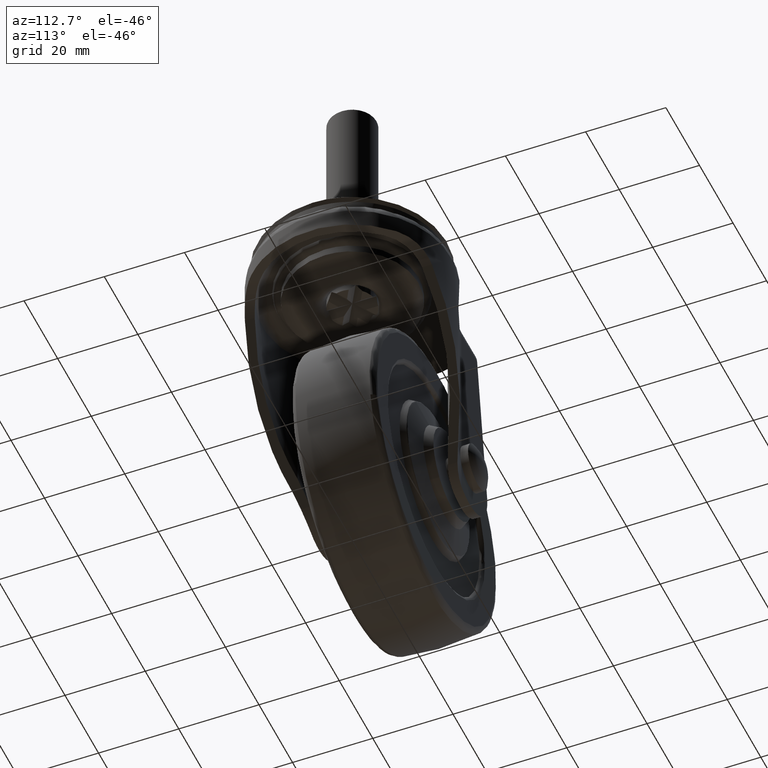
[diagram: clean part render]
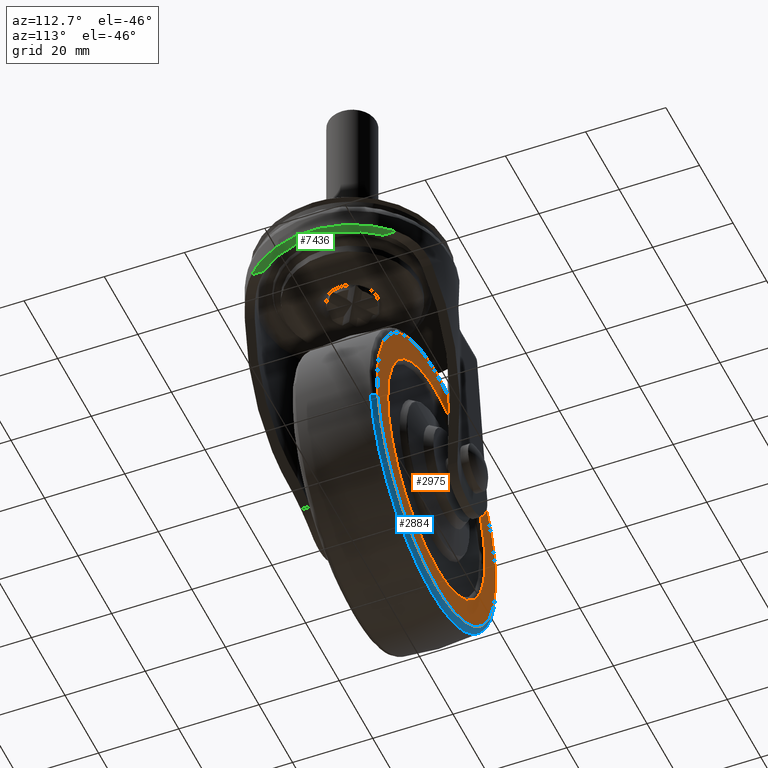
[diagram: same view with three faces highlighted in distinct colors, each labeled with its STEP entity id]
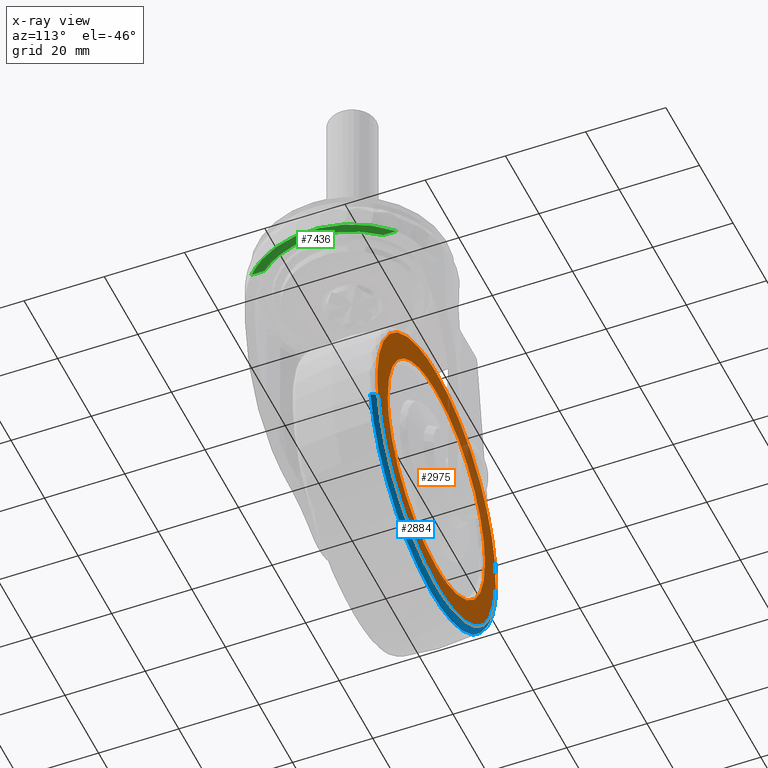
[diagram: x-ray of the same camera — body ghosted, the three highlighted faces saturated]
A machine part, auxiliary view with three faces highlighted in distinct colors.
The next image is the same camera in x-ray (body ghosted, the three faces saturated) — at least one of them is partly hidden behind the body in this view.
Their STEP definitions:

[orange] entity #2975 — the highlighted face is a freeform B-spline surface patch.
#2742=CARTESIAN_POINT('',(9.833513621472420,10.499999999999970,-55.241633087046743));
#2743=VERTEX_POINT('',#2742);
#2754=CARTESIAN_POINT('',(-25.0,10.500000000000000,-14.196417278717240));
#2755=VERTEX_POINT('',#2754);
#2756=CARTESIAN_POINT('',(9.833513621472420,10.499999999999970,-55.241633087046743));
#2757=CARTESIAN_POINT('',(10.157814401604780,10.499999999999970,-53.275279123376798));
#2758=CARTESIAN_POINT('',(10.390200561761590,10.499999999999970,-50.324354790365582));
#2759=CARTESIAN_POINT('',(10.189343725641150,10.499999999999980,-46.020807152058680));
#2760=CARTESIAN_POINT('',(9.624602316848836,10.499999999999970,-42.149212593272210));
#2761=CARTESIAN_POINT('',(8.345171582749103,10.499999999999989,-37.529121580926862));
#2762=CARTESIAN_POINT('',(6.504117009425287,10.499999999999950,-33.359894178948117));
#2763=CARTESIAN_POINT('',(4.160872115881816,10.499999999999940,-29.460925218352472));
#2764=CARTESIAN_POINT('',(1.918222982358623,10.500000000000380,-26.549123120400552));
#2765=CARTESIAN_POINT('',(-0.898696218039545,10.499999999999551,-23.613012114731809));
#2766=CARTESIAN_POINT('',(-4.133742534500807,10.500000000000140,-20.881910109461700));
#2767=CARTESIAN_POINT('',(-7.988775291349205,10.500000000000369,-18.452929372024791));
#2768=CARTESIAN_POINT('',(-12.335645794620779,10.499999999999810,-16.440735860867431));
#2769=CARTESIAN_POINT('',(-16.682009963358858,10.499999999999950,-15.073146612302249));
#2770=CARTESIAN_POINT('',(-21.093914278981948,10.500000000000220,-14.334214013443971));
#2771=CARTESIAN_POINT('',(-23.804263599596698,10.499999999999741,-14.196406389922741));
#2772=CARTESIAN_POINT('',(-25.0,10.500000000000000,-14.196417278717240));
#2773=B_SPLINE_CURVE_WITH_KNOTS('',3,(#2756,#2757,#2758,#2759,#2760,#2761,#2762,#2763,#2764,#2765,#2766,#2767,#2768,#2769,#2770,#2771,#2772),.UNSPECIFIED.,.F.,.U.,(4,1,1,1,1,1,1,1,1,1,1,1,1,1,4),(0.000000054299278,5.978718286946425,8.848503056171055,12.914026964034241,17.697010386645459,23.197460145397880,26.545548861988120,31.328435226022378,34.198261670844850,38.742100696448361,44.003366954811327,47.829761974693440,53.091028233053741,57.634867258656413,61.222085938480561),.UNSPECIFIED.);
#2774=EDGE_CURVE('',#2743,#2755,#2773,.T.);
#2776=CARTESIAN_POINT('',(-59.833513621472427,10.499999999999970,-43.758295470387537));
#2777=VERTEX_POINT('',#2776);
#2778=CARTESIAN_POINT('',(-25.0,10.500000000000000,-14.196417278717240));
#2779=CARTESIAN_POINT('',(-26.811525737116281,10.500000000000020,-14.196307693423140));
#2780=CARTESIAN_POINT('',(-29.528759456105380,10.500000000000000,-14.406043977141120));
#2781=CARTESIAN_POINT('',(-33.468869110184862,10.499999999999980,-15.173728206301190));
#2782=CARTESIAN_POINT('',(-36.763621821157763,10.500000000000060,-16.142170286002251));
#2783=CARTESIAN_POINT('',(-40.833087896828403,10.499999999999920,-17.829571516339570));
#2784=CARTESIAN_POINT('',(-44.876674878356532,10.500000000000140,-20.171862827101911));
#2785=CARTESIAN_POINT('',(-48.228872476680387,10.499999999999771,-22.831804075404481));
#2786=CARTESIAN_POINT('',(-50.918109169392189,10.500000000000449,-25.452234842852491));
#2787=CARTESIAN_POINT('',(-53.017647802759583,10.499999999999190,-27.920263840895089));
#2788=CARTESIAN_POINT('',(-55.221836183700752,10.500000000000931,-31.120174598744899));
#2789=CARTESIAN_POINT('',(-57.011174927197978,10.499999999999710,-34.427057230949138));
#2790=CARTESIAN_POINT('',(-58.743620365080211,10.500000000000041,-38.757965204289889));
#2791=CARTESIAN_POINT('',(-59.518008118093753,10.499999999999959,-41.843193416825748));
#2792=CARTESIAN_POINT('',(-59.833513621472427,10.499999999999970,-43.758295470387537));
#2793=B_SPLINE_CURVE_WITH_KNOTS('',3,(#2778,#2779,#2780,#2781,#2782,#2783,#2784,#2785,#2786,#2787,#2788,#2789,#2790,#2791,#2792),.UNSPECIFIED.,.F.,.U.,(4,1,1,1,1,1,1,1,1,1,1,1,4),(0.000000054359845,5.434558695177991,8.151831122498535,12.033681000206929,15.721428173455960,21.350114838133390,26.008255451915151,28.531459809579111,32.607376821628719,35.712857520269253,40.176979447410517,43.864735719945642,49.687457612597072),.UNSPECIFIED.);
#2794=EDGE_CURVE('',#2755,#2777,#2793,.T.);
#2842=CARTESIAN_POINT('',(-25.0,10.499999999999950,-84.803511278717025));
#2843=VERTEX_POINT('',#2842);
#2844=CARTESIAN_POINT('',(-59.833513621472427,10.499999999999970,-43.758295470387537));
#2845=CARTESIAN_POINT('',(-60.235802018750100,10.499999999999989,-46.196566339131330));
#2846=CARTESIAN_POINT('',(-60.459637733645550,10.499999999999940,-50.037498177999900));
#2847=CARTESIAN_POINT('',(-59.961078110980729,10.499999999999989,-54.802409840869892));
#2848=CARTESIAN_POINT('',(-59.175138360753031,10.499999999999950,-58.631912387982950));
#2849=CARTESIAN_POINT('',(-58.026629729061497,10.499999999999931,-62.207233061786752));
#2850=CARTESIAN_POINT('',(-56.232271336810662,10.500000000000011,-66.126226927732887));
#2851=CARTESIAN_POINT('',(-54.121952168733777,10.500000000000030,-69.610969678239556));
#2852=CARTESIAN_POINT('',(-51.752504707499057,10.499999999999730,-72.623504793739784));
#2853=CARTESIAN_POINT('',(-49.101294638982260,10.500000000000099,-75.386905882263449));
#2854=CARTESIAN_POINT('',(-45.866271516101087,10.499999999999870,-78.118039923789809));
#2855=CARTESIAN_POINT('',(-42.281745269770980,10.499999999999980,-80.376523071773505));
#2856=CARTESIAN_POINT('',(-38.396958386578881,10.499999999999980,-82.239146164141772));
#2857=CARTESIAN_POINT('',(-34.402893071103797,10.499999999999771,-83.646221086265470));
#2858=CARTESIAN_POINT('',(-29.703231146532382,10.500000000000460,-84.598044435999142));
#2859=CARTESIAN_POINT('',(-26.514593768562250,10.499999999999460,-84.803548595972103));
#2860=CARTESIAN_POINT('',(-25.0,10.499999999999950,-84.803511278717025));
#2861=B_SPLINE_CURVE_WITH_KNOTS('',3,(#2844,#2845,#2846,#2847,#2848,#2849,#2850,#2851,#2852,#2853,#2854,#2855,#2856,#2857,#2858,#2859,#2860),.UNSPECIFIED.,.F.,.U.,(4,1,1,1,1,1,1,1,1,1,1,1,1,1,4),(0.000000054534091,7.413610131659731,11.479130754584951,14.348923960323280,19.131903583062620,22.719161560348969,27.262985477111879,31.328435226137550,34.198261670948050,38.742100696532731,44.003366954875418,46.873163235148837,51.656137624927297,56.678297994785218,61.222085938480042),.UNSPECIFIED.);
#2862=EDGE_CURVE('',#2777,#2843,#2861,.T.);
#2864=CARTESIAN_POINT('',(-25.0,10.499999999999950,-84.803511278717025));
#2865=CARTESIAN_POINT('',(-23.382572545584399,10.499999999999950,-84.803561993575599));
#2866=CARTESIAN_POINT('',(-19.824234882366650,10.499999999999959,-84.558633719745742));
#2867=CARTESIAN_POINT('',(-14.629182796835570,10.499999999999901,-83.397488566956753));
#2868=CARTESIAN_POINT('',(-10.044206367339600,10.500000000000041,-81.584102334735746));
#2869=CARTESIAN_POINT('',(-6.354831117302061,10.499999999999879,-79.553913890350415));
#2870=CARTESIAN_POINT('',(-3.482402300722288,10.499999999999909,-77.556942025671447));
#2871=CARTESIAN_POINT('',(-0.766751542203159,10.500000000000030,-75.252284899412103));
#2872=CARTESIAN_POINT('',(1.934371785403266,10.499999999999890,-72.456216424966925));
#2873=CARTESIAN_POINT('',(4.788231729988124,10.500000000000080,-68.680152072440265));
#2874=CARTESIAN_POINT('',(7.221875988886065,10.499999999999931,-64.241037394439957));
#2875=CARTESIAN_POINT('',(8.925819062185175,10.499999999999970,-59.616344405447443));
#2876=CARTESIAN_POINT('',(9.602059552423883,10.499999999999980,-56.646020484497257));
#2877=CARTESIAN_POINT('',(9.833513621472420,10.499999999999970,-55.241633087046743));
#2878=B_SPLINE_CURVE_WITH_KNOTS('',3,(#2864,#2865,#2866,#2867,#2868,#2869,#2870,#2871,#2872,#2873,#2874,#2875,#2876,#2877),.UNSPECIFIED.,.F.,.U.,(4,1,1,1,1,1,1,1,1,1,1,4),(0.000000054366609,4.852288119674697,10.675033389736210,15.915528339643201,19.603284043805051,23.291039103728270,26.396418262616319,30.278275683738869,34.936484091081198,40.565153972051981,45.417456130556559,49.687457612597051),.UNSPECIFIED.);
#2879=EDGE_CURVE('',#2843,#2743,#2878,.T.);
#2885=CARTESIAN_POINT('',(-63.828396298376241,10.500000000000000,-10.669593070267499));
#2886=CARTESIAN_POINT('',(-63.828396298376241,10.500000000000000,-88.330337380996596));
#2887=CARTESIAN_POINT('',(13.828420916920070,10.500000000000000,-10.669593070267499));
#2888=CARTESIAN_POINT('',(13.828420916920070,10.500000000000000,-88.330337380996596));
#2889=B_SPLINE_SURFACE_WITH_KNOTS('',1,1,((#2885,#2887),(#2886,#2888)),.UNSPECIFIED.,.F.,.F.,.U.,(2,2),(2,2),(0.0,77.660744310729100),(0.0,77.656817215296314),.UNSPECIFIED.);
#2890=ORIENTED_EDGE('',*,*,#2862,.F.);
#2891=ORIENTED_EDGE('',*,*,#2794,.F.);
#2892=ORIENTED_EDGE('',*,*,#2774,.F.);
#2893=ORIENTED_EDGE('',*,*,#2879,.F.);
#2894=EDGE_LOOP('',(#2890,#2891,#2892,#2893));
#2895=FACE_OUTER_BOUND('',#2894,.T.);
#2896=CARTESIAN_POINT('',(-25.0,10.500000000000000,-78.499964995979738));
#2897=VERTEX_POINT('',#2896);
#2898=CARTESIAN_POINT('',(3.997710994119841,10.500000000000000,-49.864379444530812));
#2899=VERTEX_POINT('',#2898);
#2900=CARTESIAN_POINT('',(-25.0,10.500000000000000,-78.499964995979738));
#2901=CARTESIAN_POINT('',(-23.411338580855400,10.499999999999980,-78.500083124986645));
#2902=CARTESIAN_POINT('',(-20.881292054212331,10.500000000000050,-78.291518100176376));
#2903=CARTESIAN_POINT('',(-17.081170578475319,10.499999999999970,-77.469469826126371));
#2904=CARTESIAN_POINT('',(-13.735078845073900,10.500000000000000,-76.316895870728885));
#2905=CARTESIAN_POINT('',(-10.152654286614551,10.500000000000011,-74.516747460017399));
#2906=CARTESIAN_POINT('',(-7.090550769869774,10.499999999999901,-72.410135218607408));
#2907=CARTESIAN_POINT('',(-4.061767125399243,10.500000000000250,-69.697386097363406));
#2908=CARTESIAN_POINT('',(-1.579587466920788,10.499999999999710,-66.770811611771521));
#2909=CARTESIAN_POINT('',(0.739016929465512,10.500000000000441,-63.075785327525402));
#2910=CARTESIAN_POINT('',(2.390172528963054,10.499999999999909,-59.351767153880502));
#2911=CARTESIAN_POINT('',(3.640389031421735,10.499999999999931,-54.802709058545851));
#2912=CARTESIAN_POINT('',(3.975007471726284,10.500000000000050,-51.688265321703341));
#2913=CARTESIAN_POINT('',(3.997710994119841,10.500000000000000,-49.864379444530812));
#2914=B_SPLINE_CURVE_WITH_KNOTS('',3,(#2900,#2901,#2902,#2903,#2904,#2905,#2906,#2907,#2908,#2909,#2910,#2911,#2912,#2913),.UNSPECIFIED.,.F.,.U.,(4,1,1,1,1,1,1,1,1,1,1,4),(0.000000070663191,4.765967557542560,7.590280277127576,11.650223062477270,15.357131178923940,19.593562206388249,22.770844453328809,27.536856737198029,31.067251990583170,35.833268256996853,39.716694765485357,45.188739601758499),.UNSPECIFIED.);
#2915=EDGE_CURVE('',#2897,#2899,#2914,.T.);
#2916=ORIENTED_EDGE('',*,*,#2915,.T.);
#2917=CARTESIAN_POINT('',(-25.0,10.500000000000000,-20.499963561454539));
#2918=VERTEX_POINT('',#2917);
#2919=CARTESIAN_POINT('',(3.997710994119841,10.500000000000000,-49.864379444530812));
#2920=CARTESIAN_POINT('',(4.011247760238191,10.500000000000011,-48.788287058261922));
#2921=CARTESIAN_POINT('',(3.905489593725533,10.500000000000000,-46.335441692562902));
#2922=CARTESIAN_POINT('',(3.297442788783926,10.500000000000000,-42.790834751613907));
#2923=CARTESIAN_POINT('',(2.094762008387382,10.499999999999980,-38.899792292503712));
#2924=CARTESIAN_POINT('',(0.234046318928382,10.500000000000050,-34.936125012155998));
#2925=CARTESIAN_POINT('',(-2.397822198766622,10.500000000000000,-31.137852140607659));
#2926=CARTESIAN_POINT('',(-5.258087742177062,10.499999999999980,-28.150534903904159));
#2927=CARTESIAN_POINT('',(-8.004469976419101,10.500000000000041,-25.928072430069669));
#2928=CARTESIAN_POINT('',(-10.678104589960411,10.499999999999920,-24.218056874211481));
#2929=CARTESIAN_POINT('',(-13.627579255160811,10.500000000000179,-22.753869415186010));
#2930=CARTESIAN_POINT('',(-17.233679400278039,10.499999999999890,-21.452229824155779));
#2931=CARTESIAN_POINT('',(-21.113758186443668,10.500000000000041,-20.661690933712048));
#2932=CARTESIAN_POINT('',(-23.864033407590320,10.500000000000000,-20.499944593494490));
#2933=CARTESIAN_POINT('',(-25.0,10.500000000000000,-20.499963561454539));
#2934=B_SPLINE_CURVE_WITH_KNOTS('',3,(#2919,#2920,#2921,#2922,#2923,#2924,#2925,#2926,#2927,#2928,#2929,#2930,#2931,#2932,#2933),.UNSPECIFIED.,.F.,.U.,(4,1,1,1,1,1,1,1,1,1,1,1,4),(0.000000073540441,3.228539457566981,7.353969193787037,10.761932451217261,15.425461501953000,20.447686254038370,24.573041107743130,27.801666853115702,31.030230874414642,34.079462538876477,37.666782893494997,42.509685166278629,45.917592545971999),.UNSPECIFIED.);
#2935=EDGE_CURVE('',#2899,#2918,#2934,.T.);
#2936=ORIENTED_EDGE('',*,*,#2935,.T.);
#2937=CARTESIAN_POINT('',(-53.997710994119842,10.500000000000000,-49.135549112903462));
#2938=VERTEX_POINT('',#2937);
#2939=CARTESIAN_POINT('',(-25.0,10.500000000000000,-20.499963561454539));
#2940=CARTESIAN_POINT('',(-26.117948299729690,10.500000000000000,-20.499941542884901));
#2941=CARTESIAN_POINT('',(-28.648033775174820,10.500000000000011,-20.646427138326828));
#2942=CARTESIAN_POINT('',(-32.878396969883163,10.500000000000000,-21.454064835768200));
#2943=CARTESIAN_POINT('',(-36.980991748281902,10.500000000000011,-22.965861017819151));
#2944=CARTESIAN_POINT('',(-41.004609766143183,10.499999999999980,-25.191253758663830));
#2945=CARTESIAN_POINT('',(-44.198222040743730,10.500000000000050,-27.625571175593450));
#2946=CARTESIAN_POINT('',(-46.792510188547482,10.499999999999980,-30.282936595065610));
#2947=CARTESIAN_POINT('',(-48.905668822719257,10.500000000000030,-32.967200779233842));
#2948=CARTESIAN_POINT('',(-50.821086698502413,10.500000000000030,-36.082449463662797));
#2949=CARTESIAN_POINT('',(-52.390174852539253,10.499999999999920,-39.710464965102886));
#2950=CARTESIAN_POINT('',(-53.619708375778053,10.500000000000130,-44.079816143809438));
#2951=CARTESIAN_POINT('',(-53.973584344659372,10.499999999999760,-47.193976587724727));
#2952=CARTESIAN_POINT('',(-53.997710994119842,10.500000000000000,-49.135549112903462));
#2953=B_SPLINE_CURVE_WITH_KNOTS('',3,(#2939,#2940,#2941,#2942,#2943,#2944,#2945,#2946,#2947,#2948,#2949,#2950,#2951,#2952),.UNSPECIFIED.,.F.,.U.,(4,1,1,1,1,1,1,1,1,1,1,4),(0.000000070700715,3.353851913367073,7.590280277157106,12.885855779481229,16.416246884810789,21.358749695500070,24.889094533455228,27.536856737213959,31.596807489431551,35.833268257006360,39.363639299812156,45.188739601758272),.UNSPECIFIED.);
#2954=EDGE_CURVE('',#2918,#2938,#2953,.T.);
#2955=ORIENTED_EDGE('',*,*,#2954,.T.);
#2956=CARTESIAN_POINT('',(-53.997710994119842,10.500000000000000,-49.135549112903462));
#2957=CARTESIAN_POINT('',(-54.018897594099862,10.500000000000030,-50.809491238542442));
#2958=CARTESIAN_POINT('',(-53.814474799436489,10.499999999999940,-53.562484825470641));
#2959=CARTESIAN_POINT('',(-52.876433795675581,10.500000000000030,-57.831988501734500));
#2960=CARTESIAN_POINT('',(-51.289808149571193,10.499999999999980,-62.106852847210291));
#2961=CARTESIAN_POINT('',(-49.054976160368042,10.499999999999989,-65.879215469042080));
#2962=CARTESIAN_POINT('',(-46.392519258349552,10.499999999999959,-69.191323550817302));
#2963=CARTESIAN_POINT('',(-43.766510067434879,10.500000000000060,-71.737876904599062));
#2964=CARTESIAN_POINT('',(-40.129722814808929,10.500000000000000,-74.377260085719939));
#2965=CARTESIAN_POINT('',(-36.389343726969457,10.499999999999909,-76.292125755298272));
#2966=CARTESIAN_POINT('',(-32.752062796809263,10.500000000000060,-77.503842547095630));
#2967=CARTESIAN_POINT('',(-29.125356346148401,10.499999999999959,-78.289722625437761));
#2968=CARTESIAN_POINT('',(-26.614297953642090,10.500000000000030,-78.500092298289957));
#2969=CARTESIAN_POINT('',(-25.0,10.500000000000000,-78.499964995979738));
#2970=B_SPLINE_CURVE_WITH_KNOTS('',3,(#2956,#2957,#2958,#2959,#2960,#2961,#2962,#2963,#2964,#2965,#2966,#2967,#2968,#2969),.UNSPECIFIED.,.F.,.U.,(4,1,1,1,1,1,1,1,1,1,1,4),(0.000000073492032,5.022205826207127,8.250812251170444,13.093697011243069,18.654025649160658,21.344552130953080,25.828609101141360,29.595316502219610,34.796926311753772,38.384256468944102,41.074721997514331,45.917592545972070),.UNSPECIFIED.);
#2971=EDGE_CURVE('',#2938,#2897,#2970,.T.);
#2972=ORIENTED_EDGE('',*,*,#2971,.T.);
#2973=EDGE_LOOP('',(#2916,#2936,#2955,#2972));
#2974=FACE_BOUND('',#2973,.T.);
#2975=ADVANCED_FACE('',(#2895,#2974),#2889,.F.);

[blue] entity #2884 — the highlighted face is a freeform B-spline surface patch.
#2561=CARTESIAN_POINT('',(-25.0,9.230742634601860,-86.285657244330764));
#2562=VERTEX_POINT('',#2561);
#2571=CARTESIAN_POINT('',(11.295924161015449,9.230742941106907,-55.482684766788630));
#2572=VERTEX_POINT('',#2571);
#2573=CARTESIAN_POINT('',(-25.0,9.230742634601860,-86.285657244330764));
#2574=CARTESIAN_POINT('',(-23.045018862977990,9.230742644199218,-86.285743229991184));
#2575=CARTESIAN_POINT('',(-18.932811029073289,9.230742665756269,-85.957193874480993));
#2576=CARTESIAN_POINT('',(-13.486862637971310,9.230742698222239,-84.581698495184114));
#2577=CARTESIAN_POINT('',(-8.937960280176249,9.230742728474194,-82.680517778760347));
#2578=CARTESIAN_POINT('',(-5.518121884724243,9.230742753204885,-80.774105566195800));
#2579=CARTESIAN_POINT('',(-2.082550186019867,9.230742780020721,-78.385737340407090));
#2580=CARTESIAN_POINT('',(1.203588067516712,9.230742808297974,-75.470232408259633));
#2581=CARTESIAN_POINT('',(4.075442199912475,9.230742836228862,-72.150076162715095));
#2582=CARTESIAN_POINT('',(6.612277267029130,9.230742863932585,-68.488931125425268));
#2583=CARTESIAN_POINT('',(8.629195298726653,9.230742889779291,-64.661485448475261));
#2584=CARTESIAN_POINT('',(10.322379109586180,9.230742917073599,-60.104786771170239));
#2585=CARTESIAN_POINT('',(11.021901305186470,9.230742932834399,-57.145583767534518));
#2586=CARTESIAN_POINT('',(11.295924161015449,9.230742941106907,-55.482684766788630));
#2587=B_SPLINE_CURVE_WITH_KNOTS('',3,(#2573,#2574,#2575,#2576,#2577,#2578,#2579,#2580,#2581,#2582,#2583,#2584,#2585,#2586),.UNSPECIFIED.,.F.,.U.,(4,1,1,1,1,1,1,1,1,1,1,4),(0.000000052567785,5.864952464914097,12.336648072001630,16.785948737055580,20.628522188213619,24.066619136716142,29.324819506689789,33.774090722483990,37.212189038250393,42.672688504653692,46.717507489184847,51.773480724665177),.UNSPECIFIED.);
#2588=EDGE_CURVE('',#2562,#2572,#2587,.T.);
#2672=CARTESIAN_POINT('',(-61.295924161016814,9.230742941098079,-43.517243790645423));
#2673=VERTEX_POINT('',#2672);
#2691=CARTESIAN_POINT('',(-61.295924161016814,9.230742941098079,-43.517243790645423));
#2692=CARTESIAN_POINT('',(-61.728731923528883,9.230742931703695,-46.139821621512262));
#2693=CARTESIAN_POINT('',(-61.971144930983037,9.230742914142185,-50.561344602555600));
#2694=CARTESIAN_POINT('',(-61.174749822637153,9.230742884822609,-56.923760373845312));
#2695=CARTESIAN_POINT('',(-59.761943200134532,9.230742859123657,-61.893798321857737));
#2696=CARTESIAN_POINT('',(-57.812563336342052,9.230742833841982,-66.308182457756189));
#2697=CARTESIAN_POINT('',(-55.369078559492799,9.230742807867861,-70.469451008724334));
#2698=CARTESIAN_POINT('',(-52.471578928183618,9.230742782382750,-74.127878573782112));
#2699=CARTESIAN_POINT('',(-48.885029398395147,9.230742755247588,-77.597609138266222));
#2700=CARTESIAN_POINT('',(-45.496237153885289,9.230742732601936,-80.157390676968163));
#2701=CARTESIAN_POINT('',(-41.825741144279611,9.230742710768094,-82.283275451552768));
#2702=CARTESIAN_POINT('',(-37.731122442345942,9.230742688603080,-84.128559554135407));
#2703=CARTESIAN_POINT('',(-32.143272164569389,9.230742661866014,-85.803990483584869));
#2704=CARTESIAN_POINT('',(-27.574958149913261,9.230742643704931,-86.286047719887137));
#2705=CARTESIAN_POINT('',(-25.0,9.230742634601860,-86.285657244330764));
#2706=B_SPLINE_CURVE_WITH_KNOTS('',3,(#2691,#2692,#2693,#2694,#2695,#2696,#2697,#2698,#2699,#2700,#2701,#2702,#2703,#2704,#2705),.UNSPECIFIED.,.F.,.U.,(4,1,1,1,1,1,1,1,1,1,1,1,4),(0.000000042187494,7.974015631830881,13.207004272368330,19.187557693327260,23.423784870024559,27.659974118803479,33.640474566527551,37.378310618308902,42.611293544623130,46.349139503072543,50.086980723865317,56.067540041560463,63.792365178012538),.UNSPECIFIED.);
#2707=EDGE_CURVE('',#2673,#2562,#2706,.T.);
#2742=CARTESIAN_POINT('',(9.833513621472420,10.499999999999970,-55.241633087046743));
#2743=VERTEX_POINT('',#2742);
#2744=CARTESIAN_POINT('',(9.833513621472420,10.499999999999970,-55.241633087046743));
#2745=CARTESIAN_POINT('',(10.051927399562150,10.500297930727740,-55.277634611030301));
#2746=CARTESIAN_POINT('',(10.411922774474659,10.417704068992411,-55.336973276545727));
#2747=CARTESIAN_POINT('',(10.816146906537410,10.145330181210699,-55.403602245226672));
#2748=CARTESIAN_POINT('',(11.134868125947420,9.776205636507410,-55.456137619676191));
#2749=CARTESIAN_POINT('',(11.262679686853170,9.449546629561841,-55.477205022150848));
#2750=CARTESIAN_POINT('',(11.295924161015449,9.230742941106907,-55.482684766788630));
#2751=B_SPLINE_CURVE_WITH_KNOTS('',3,(#2744,#2745,#2746,#2747,#2748,#2749,#2750),.UNSPECIFIED.,.F.,.U.,(4,1,1,1,4),(0.000000222645224,0.663940218376787,1.095442564531482,1.460638678999480,2.124573137029232),.UNSPECIFIED.);
#2752=EDGE_CURVE('',#2743,#2572,#2751,.T.);
#2776=CARTESIAN_POINT('',(-59.833513621472427,10.499999999999970,-43.758295470387537));
#2777=VERTEX_POINT('',#2776);
#2796=CARTESIAN_POINT('',(-59.833513621472427,10.499999999999970,-43.758295470387537));
#2797=CARTESIAN_POINT('',(-59.986363875909433,10.500061691596111,-43.733100896358927));
#2798=CARTESIAN_POINT('',(-60.324844685132568,10.446464094225780,-43.677308514226617));
#2799=CARTESIAN_POINT('',(-60.754390738449331,10.209866683894370,-43.606505689098732));
#2800=CARTESIAN_POINT('',(-61.126645709351202,9.797267372437228,-43.545146253023653));
#2801=CARTESIAN_POINT('',(-61.262675282646263,9.449539806731108,-43.522724261237357));
#2802=CARTESIAN_POINT('',(-61.295924161016814,9.230742941098079,-43.517243790645423));
#2803=B_SPLINE_CURVE_WITH_KNOTS('',3,(#2796,#2797,#2798,#2799,#2800,#2801,#2802),.UNSPECIFIED.,.F.,.U.,(4,1,1,1,4),(0.000000222649883,0.464751693536965,1.029128505767580,1.460638679006834,2.124573137038131),.UNSPECIFIED.);
#2804=EDGE_CURVE('',#2777,#2673,#2803,.T.);
#2810=CARTESIAN_POINT('',(-59.578565549947356,10.496915438999645,-42.802753313677115));
#2811=CARTESIAN_POINT('',(-59.658139997206824,10.496915438999645,-43.285514978484350));
#2812=CARTESIAN_POINT('',(-65.464678447813171,10.496915438999645,-78.512579265116571));
#2813=CARTESIAN_POINT('',(-30.726031730706854,10.496915438999645,-84.238610995823421));
#2814=CARTESIAN_POINT('',(4.012614986399423,10.496915438999645,-89.964642726530258));
#2815=CARTESIAN_POINT('',(9.819153436979340,10.496915438999645,-54.737578440058201));
#2816=CARTESIAN_POINT('',(9.898727884213001,10.496915438999645,-54.254816775407434));
#2817=CARTESIAN_POINT('',(-61.010910667017498,10.590587766573744,-42.525335286896713));
#2818=CARTESIAN_POINT('',(-61.093781320153688,10.590587766573742,-43.028094349001861));
#2819=CARTESIAN_POINT('',(-67.140843542192698,10.590587766573744,-79.714366463292208));
#2820=CARTESIAN_POINT('',(-30.963220678808810,10.590587766573744,-85.677587142101032));
#2821=CARTESIAN_POINT('',(5.214402184575086,10.590587766573744,-91.640807820909842));
#2822=CARTESIAN_POINT('',(11.261464406586601,10.590587766573742,-54.954535706786281));
#2823=CARTESIAN_POINT('',(11.344335059695952,10.590587766573742,-54.451776644844038));
#2824=CARTESIAN_POINT('',(-61.140213285265936,9.135131598699530,-42.500291827199369));
#2825=CARTESIAN_POINT('',(-61.223381498009168,9.135131598699532,-43.004856121715335));
#2826=CARTESIAN_POINT('',(-67.292156611045300,9.135131598699530,-79.822855841619869));
#2827=CARTESIAN_POINT('',(-30.984632524071287,9.135131598699532,-85.807488365691142));
#2828=CARTESIAN_POINT('',(5.322891562902719,9.135131598699530,-91.792120889762430));
#2829=CARTESIAN_POINT('',(11.391666675911280,9.135131598699532,-54.974121170025299));
#2830=CARTESIAN_POINT('',(11.474834888627557,9.135131598699532,-54.469556875672865));
#2838=(BOUNDED_SURFACE()B_SPLINE_SURFACE(2,2,((#2810,#2817,#2824),(#2811,#2818,#2825),(#2812,#2819,#2826),(#2813,#2820,#2827),(#2814,#2821,#2828),(#2815,#2822,#2829),(#2816,#2823,#2830)),.UNSPECIFIED.,.F.,.F.,.U.)B_SPLINE_SURFACE_WITH_KNOTS((3,1,2,1,3),(3,3),(0.0,1.219360140752769,62.187367159789147,123.155374178825500,124.374734319176100),(0.0,2.440142451861901),.UNSPECIFIED.)GEOMETRIC_REPRESENTATION_ITEM()RATIONAL_B_SPLINE_SURFACE(((0.928814889955225,0.664795061627155,0.927473185371679),(0.923437023917335,0.660945878304680,0.922103087843522),(0.649165856066966,0.464637528917186,0.648228113989416),(0.918059157879444,0.657096694982205,0.916732990315364),(0.649165856066966,0.464637528917186,0.648228113989416),(0.923437023915561,0.660945878303411,0.922103087841750),(0.928814889951678,0.664795061624616,0.927473185368137)))REPRESENTATION_ITEM('')SURFACE());
#2839=ORIENTED_EDGE('',*,*,#2588,.F.);
#2840=ORIENTED_EDGE('',*,*,#2707,.F.);
#2841=ORIENTED_EDGE('',*,*,#2804,.F.);
#2842=CARTESIAN_POINT('',(-25.0,10.499999999999950,-84.803511278717025));
#2843=VERTEX_POINT('',#2842);
#2844=CARTESIAN_POINT('',(-59.833513621472427,10.499999999999970,-43.758295470387537));
#2845=CARTESIAN_POINT('',(-60.235802018750100,10.499999999999989,-46.196566339131330));
#2846=CARTESIAN_POINT('',(-60.459637733645550,10.499999999999940,-50.037498177999900));
#2847=CARTESIAN_POINT('',(-59.961078110980729,10.499999999999989,-54.802409840869892));
#2848=CARTESIAN_POINT('',(-59.175138360753031,10.499999999999950,-58.631912387982950));
#2849=CARTESIAN_POINT('',(-58.026629729061497,10.499999999999931,-62.207233061786752));
#2850=CARTESIAN_POINT('',(-56.232271336810662,10.500000000000011,-66.126226927732887));
#2851=CARTESIAN_POINT('',(-54.121952168733777,10.500000000000030,-69.610969678239556));
#2852=CARTESIAN_POINT('',(-51.752504707499057,10.499999999999730,-72.623504793739784));
#2853=CARTESIAN_POINT('',(-49.101294638982260,10.500000000000099,-75.386905882263449));
#2854=CARTESIAN_POINT('',(-45.866271516101087,10.499999999999870,-78.118039923789809));
#2855=CARTESIAN_POINT('',(-42.281745269770980,10.499999999999980,-80.376523071773505));
#2856=CARTESIAN_POINT('',(-38.396958386578881,10.499999999999980,-82.239146164141772));
#2857=CARTESIAN_POINT('',(-34.402893071103797,10.499999999999771,-83.646221086265470));
#2858=CARTESIAN_POINT('',(-29.703231146532382,10.500000000000460,-84.598044435999142));
#2859=CARTESIAN_POINT('',(-26.514593768562250,10.499999999999460,-84.803548595972103));
#2860=CARTESIAN_POINT('',(-25.0,10.499999999999950,-84.803511278717025));
#2861=B_SPLINE_CURVE_WITH_KNOTS('',3,(#2844,#2845,#2846,#2847,#2848,#2849,#2850,#2851,#2852,#2853,#2854,#2855,#2856,#2857,#2858,#2859,#2860),.UNSPECIFIED.,.F.,.U.,(4,1,1,1,1,1,1,1,1,1,1,1,1,1,4),(0.000000054534091,7.413610131659731,11.479130754584951,14.348923960323280,19.131903583062620,22.719161560348969,27.262985477111879,31.328435226137550,34.198261670948050,38.742100696532731,44.003366954875418,46.873163235148837,51.656137624927297,56.678297994785218,61.222085938480042),.UNSPECIFIED.);
#2862=EDGE_CURVE('',#2777,#2843,#2861,.T.);
#2863=ORIENTED_EDGE('',*,*,#2862,.T.);
#2864=CARTESIAN_POINT('',(-25.0,10.499999999999950,-84.803511278717025));
#2865=CARTESIAN_POINT('',(-23.382572545584399,10.499999999999950,-84.803561993575599));
#2866=CARTESIAN_POINT('',(-19.824234882366650,10.499999999999959,-84.558633719745742));
#2867=CARTESIAN_POINT('',(-14.629182796835570,10.499999999999901,-83.397488566956753));
#2868=CARTESIAN_POINT('',(-10.044206367339600,10.500000000000041,-81.584102334735746));
#2869=CARTESIAN_POINT('',(-6.354831117302061,10.499999999999879,-79.553913890350415));
#2870=CARTESIAN_POINT('',(-3.482402300722288,10.499999999999909,-77.556942025671447));
#2871=CARTESIAN_POINT('',(-0.766751542203159,10.500000000000030,-75.252284899412103));
#2872=CARTESIAN_POINT('',(1.934371785403266,10.499999999999890,-72.456216424966925));
#2873=CARTESIAN_POINT('',(4.788231729988124,10.500000000000080,-68.680152072440265));
#2874=CARTESIAN_POINT('',(7.221875988886065,10.499999999999931,-64.241037394439957));
#2875=CARTESIAN_POINT('',(8.925819062185175,10.499999999999970,-59.616344405447443));
#2876=CARTESIAN_POINT('',(9.602059552423883,10.499999999999980,-56.646020484497257));
#2877=CARTESIAN_POINT('',(9.833513621472420,10.499999999999970,-55.241633087046743));
#2878=B_SPLINE_CURVE_WITH_KNOTS('',3,(#2864,#2865,#2866,#2867,#2868,#2869,#2870,#2871,#2872,#2873,#2874,#2875,#2876,#2877),.UNSPECIFIED.,.F.,.U.,(4,1,1,1,1,1,1,1,1,1,1,4),(0.000000054366609,4.852288119674697,10.675033389736210,15.915528339643201,19.603284043805051,23.291039103728270,26.396418262616319,30.278275683738869,34.936484091081198,40.565153972051981,45.417456130556559,49.687457612597051),.UNSPECIFIED.);
#2879=EDGE_CURVE('',#2843,#2743,#2878,.T.);
#2880=ORIENTED_EDGE('',*,*,#2879,.T.);
#2881=ORIENTED_EDGE('',*,*,#2752,.T.);
#2882=EDGE_LOOP('',(#2839,#2840,#2841,#2863,#2880,#2881));
#2883=FACE_OUTER_BOUND('',#2882,.T.);
#2884=ADVANCED_FACE('',(#2883),#2838,.T.);

[green] entity #7436 — the highlighted face is a freeform B-spline surface patch.
#7378=CARTESIAN_POINT('',(25.142391062878179,-19.894014169249871,-10.299964237213130));
#7379=CARTESIAN_POINT('',(16.501876052823562,-19.894014169249871,-10.299964237213130));
#7380=CARTESIAN_POINT('',(25.142391062878179,19.894015139518149,-10.299964237213130));
#7381=CARTESIAN_POINT('',(16.501876052823562,19.894015139518149,-10.299964237213130));
#7382=B_SPLINE_SURFACE_WITH_KNOTS('',1,1,((#7378,#7380),(#7379,#7381)),.UNSPECIFIED.,.F.,.F.,.U.,(2,2),(2,2),(0.0,8.640515010054617),(0.0,39.788029308768017),.UNSPECIFIED.);
#7383=CARTESIAN_POINT('',(16.894269843855700,-14.784573456711000,-10.299964237213130));
#7384=VERTEX_POINT('',#7383);
#7385=CARTESIAN_POINT('',(16.894269843855700,-18.087111773218052,-10.299964237213130));
#7386=VERTEX_POINT('',#7385);
#7387=CARTESIAN_POINT('',(16.894269843855700,-14.784573456711000,-10.299964237213130));
#7388=CARTESIAN_POINT('',(16.894269843855700,-18.087111773218052,-10.299964237213130));
#7389=QUASI_UNIFORM_CURVE('',1,(#7387,#7388),.UNSPECIFIED.,.F.,.U.);
#7390=EDGE_CURVE('',#7384,#7386,#7389,.T.);
#7391=ORIENTED_EDGE('',*,*,#7390,.F.);
#7392=CARTESIAN_POINT('',(16.894269843855700,14.784573456711000,-10.299964237213130));
#7393=VERTEX_POINT('',#7392);
#7394=CARTESIAN_POINT('',(16.894269843855700,14.784573456711000,-10.299964237213130));
#7395=CARTESIAN_POINT('',(18.112557228331958,13.393218878272370,-10.299964237213160));
#7396=CARTESIAN_POINT('',(19.489414739496681,11.359128083808550,-10.299964237213089));
#7397=CARTESIAN_POINT('',(20.952469917897659,8.189319858661603,-10.299964237213160));
#7398=CARTESIAN_POINT('',(21.714636000690820,5.911901565054120,-10.299964237213080));
#7399=CARTESIAN_POINT('',(22.382426917971490,2.655059655034466,-10.299964237213191));
#7400=CARTESIAN_POINT('',(22.544603335345851,-0.551353574975408,-10.299964237213119));
#7401=CARTESIAN_POINT('',(22.133857180027722,-4.191834007709760,-10.299964237213119));
#7402=CARTESIAN_POINT('',(21.366389917709160,-7.129379322353151,-10.299964237213350));
#7403=CARTESIAN_POINT('',(20.180943617923329,-9.965074529358054,-10.299964237213020));
#7404=CARTESIAN_POINT('',(18.759082670196928,-12.451150757196711,-10.299964237213199));
#7405=CARTESIAN_POINT('',(17.558582405389220,-14.025525218666029,-10.299964237213100));
#7406=CARTESIAN_POINT('',(16.894269843855700,-14.784573456711000,-10.299964237213130));
#7407=B_SPLINE_CURVE_WITH_KNOTS('',3,(#7394,#7395,#7396,#7397,#7398,#7399,#7400,#7401,#7402,#7403,#7404,#7405,#7406),.UNSPECIFIED.,.F.,.U.,(4,1,1,1,1,1,1,1,1,1,4),(0.000000066020043,5.547860574160946,7.313107812026505,10.465318838397851,12.734913905824101,17.274056324051489,20.047982902161390,23.704559256182868,26.352419638663719,29.252470485097831,32.278552403217432),.UNSPECIFIED.);
#7408=EDGE_CURVE('',#7393,#7384,#7407,.T.);
#7409=ORIENTED_EDGE('',*,*,#7408,.F.);
#7410=CARTESIAN_POINT('',(16.894269843855700,18.087111773218052,-10.299964237213130));
#7411=VERTEX_POINT('',#7410);
#7412=CARTESIAN_POINT('',(16.894269843855700,18.087111773218052,-10.299964237213130));
#7413=CARTESIAN_POINT('',(16.894269843855700,14.784573456711000,-10.299964237213130));
#7414=QUASI_UNIFORM_CURVE('',1,(#7412,#7413),.UNSPECIFIED.,.F.,.U.);
#7415=EDGE_CURVE('',#7411,#7393,#7414,.T.);
#7416=ORIENTED_EDGE('',*,*,#7415,.F.);
#7417=CARTESIAN_POINT('',(16.894269843855700,18.087111773218052,-10.299964237213130));
#7418=CARTESIAN_POINT('',(17.666267756656360,17.366069797919550,-10.299964237213111));
#7419=CARTESIAN_POINT('',(19.190302556966039,15.747854433300271,-10.299964237213199));
#7420=CARTESIAN_POINT('',(21.470380221907838,12.561291057661400,-10.299964237213111));
#7421=CARTESIAN_POINT('',(23.149872879951271,9.068089442884441,-10.299964237213111));
#7422=CARTESIAN_POINT('',(24.250248927121660,5.310034121645002,-10.299964237213210));
#7423=CARTESIAN_POINT('',(24.726528544542429,2.168270494147365,-10.299964237213320));
#7424=CARTESIAN_POINT('',(24.800880880591379,-1.693171130353928,-10.299964237212841));
#7425=CARTESIAN_POINT('',(24.271703734994929,-5.425586328811168,-10.299964237213571));
#7426=CARTESIAN_POINT('',(23.090715224539490,-9.105213844967230,-10.299964237213040));
#7427=CARTESIAN_POINT('',(21.755697287773661,-11.928115386693261,-10.299964237213119));
#7428=CARTESIAN_POINT('',(19.806159353689480,-15.014474943836710,-10.299964237213260));
#7429=CARTESIAN_POINT('',(18.090999290004540,-16.969597019998272,-10.299964237212819));
#7430=CARTESIAN_POINT('',(16.894269843855700,-18.087111773218052,-10.299964237213130));
#7431=B_SPLINE_CURVE_WITH_KNOTS('',3,(#7417,#7418,#7419,#7420,#7421,#7422,#7423,#7424,#7425,#7426,#7427,#7428,#7429,#7430),.UNSPECIFIED.,.F.,.U.,(4,1,1,1,1,1,1,1,1,1,1,4),(0.000000081132349,3.169062129430103,6.655094437935581,11.725659275304000,14.736325675952230,18.380784606779901,21.232930222225260,26.303475921180421,29.631047104615462,32.800158637562227,35.652353491381938,40.564432178781672),.UNSPECIFIED.);
#7432=EDGE_CURVE('',#7411,#7386,#7431,.T.);
#7433=ORIENTED_EDGE('',*,*,#7432,.T.);
#7434=EDGE_LOOP('',(#7391,#7409,#7416,#7433));
#7435=FACE_OUTER_BOUND('',#7434,.T.);
#7436=ADVANCED_FACE('',(#7435),#7382,.T.);